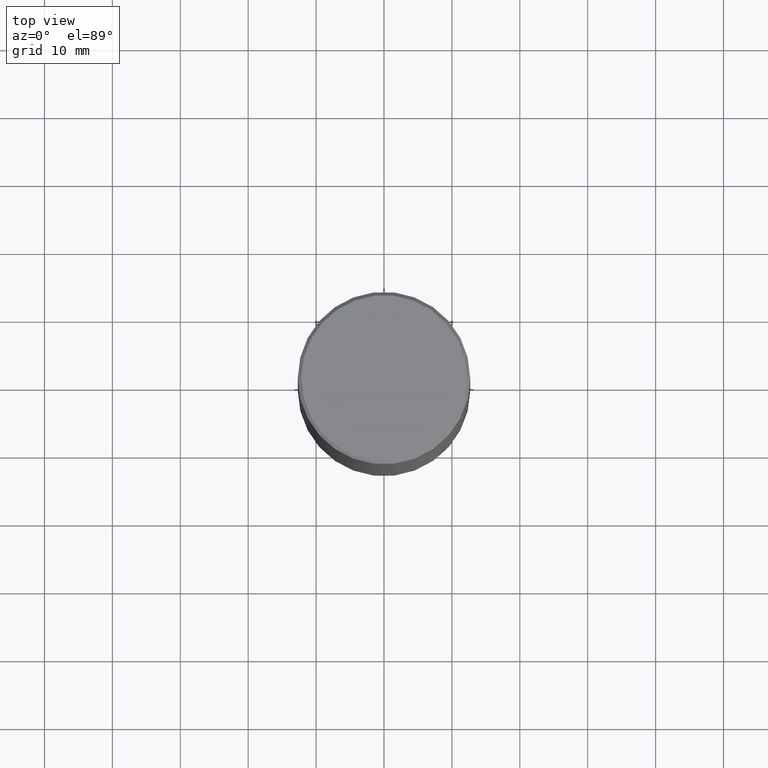
[diagram: clean part render]
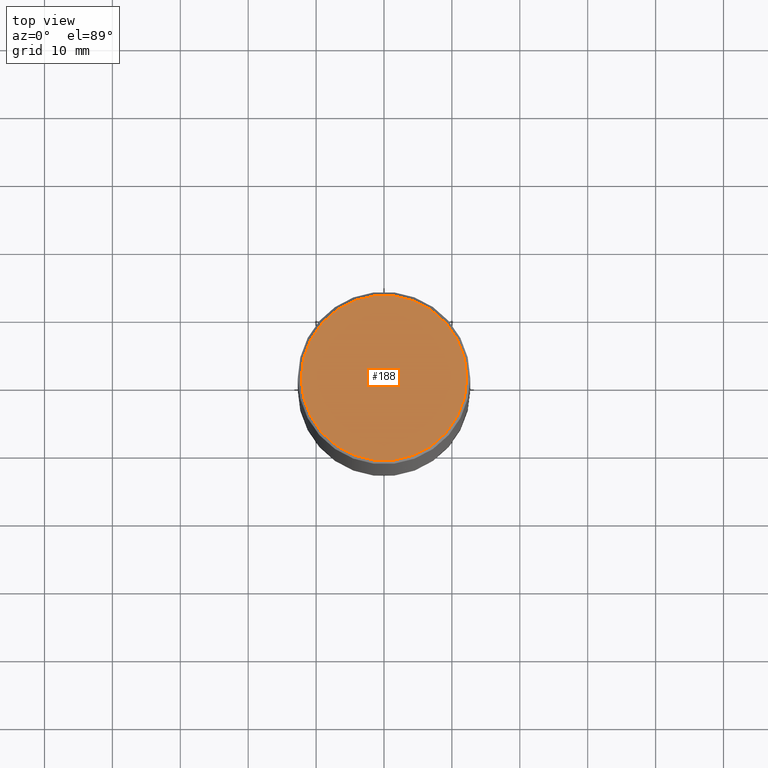
[diagram: same view with one face highlighted and labeled with its STEP entity id]
A machine part, top view. The second image highlights one B-rep face of the part: STEP entity #188.
In plain terms, the highlighted planar face has unit normal (0, -0, -1).
Its self-contained STEP definition (entity closure, byte-faithful):
#11 = CIRCLE ( 'NONE', #411, 0.4799999999999996492 ) ;
#26 = CARTESIAN_POINT ( 'NONE',  ( -0.4799999999999996492, 3.386736898677836830E-15, 1.280553747027767124E-17 ) ) ;
#47 = ORIENTED_EDGE ( 'NONE', *, *, #128, .T. ) ;
#57 = VERTEX_POINT ( 'NONE', #26 ) ;
#60 = EDGE_LOOP ( 'NONE', ( #47, #328 ) ) ;
#78 = DIRECTION ( 'NONE',  ( -2.445468806185136597E-29, 3.491481338843145583E-15, 1.000000000000000000 ) ) ;
#104 = CARTESIAN_POINT ( 'NONE',  ( 0.4799999999999996492, -3.396558832296479338E-15, 1.280553747032483033E-17 ) ) ;
#128 = EDGE_CURVE ( 'NONE', #57, #281, #11, .T. ) ;
#141 = DIRECTION ( 'NONE',  ( -2.445468806185136597E-29, 3.491481338843145583E-15, 1.000000000000000000 ) ) ;
#151 = PLANE ( 'NONE',  #230 ) ;
#167 = CIRCLE ( 'NONE', #190, 0.4799999999999996492 ) ;
#187 = FACE_OUTER_BOUND ( 'NONE', #60, .T. ) ;
#188 = ADVANCED_FACE ( 'NONE', ( #187 ), #151, .F. ) ;
#190 = AXIS2_PLACEMENT_3D ( 'NONE', #351, #78, #415 ) ;
#230 = AXIS2_PLACEMENT_3D ( 'NONE', #282, #353, #414 ) ;
#281 = VERTEX_POINT ( 'NONE', #104 ) ;
#282 = CARTESIAN_POINT ( 'NONE',  ( 3.351822085289405181E-15, 0.4799999999999996492, -1.669508273909558064E-15 ) ) ;
#328 = ORIENTED_EDGE ( 'NONE', *, *, #390, .T. ) ;
#336 = DIRECTION ( 'NONE',  ( 1.000000000000000000, -6.982962677686267499E-15, 4.876036955247132767E-29 ) ) ;
#351 = CARTESIAN_POINT ( 'NONE',  ( -3.131554243005659264E-46, 4.471029511141341874E-32, 1.280553747030123384E-17 ) ) ;
#353 = DIRECTION ( 'NONE',  ( 2.438088387897960049E-29, -3.491481338843145188E-15, -1.000000000000000000 ) ) ;
#390 = EDGE_CURVE ( 'NONE', #281, #57, #167, .T. ) ;
#405 = CARTESIAN_POINT ( 'NONE',  ( -3.131554243005659264E-46, 4.471029511141341874E-32, 1.280553747030123384E-17 ) ) ;
#411 = AXIS2_PLACEMENT_3D ( 'NONE', #405, #141, #336 ) ;
#414 = DIRECTION ( 'NONE',  ( -1.000000000000000000, 6.982962677686265922E-15, -4.876176775795935793E-29 ) ) ;
#415 = DIRECTION ( 'NONE',  ( 1.000000000000000000, -6.982962677686267499E-15, 4.876036955247132767E-29 ) ) ;